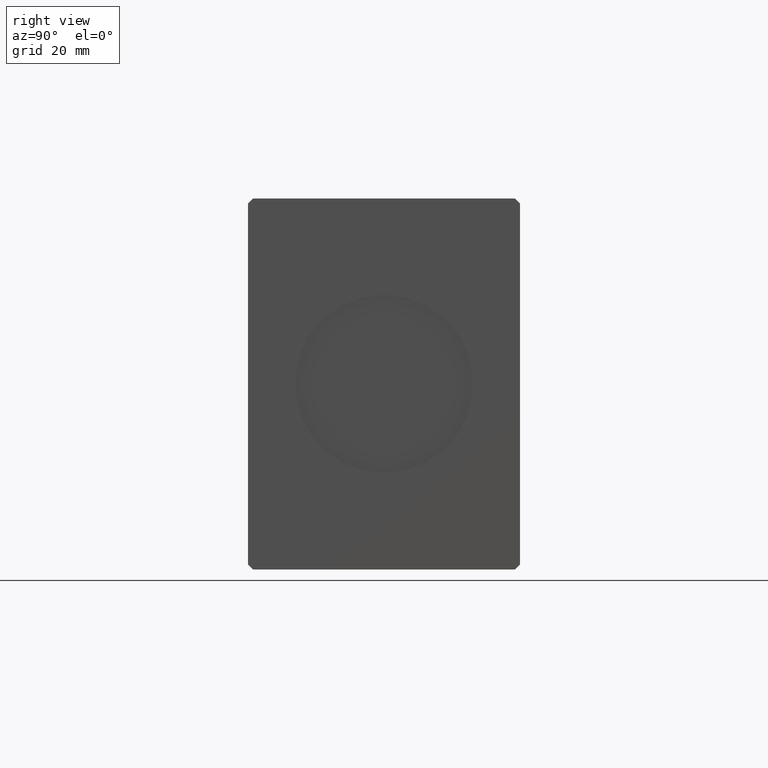
[diagram: clean part render]
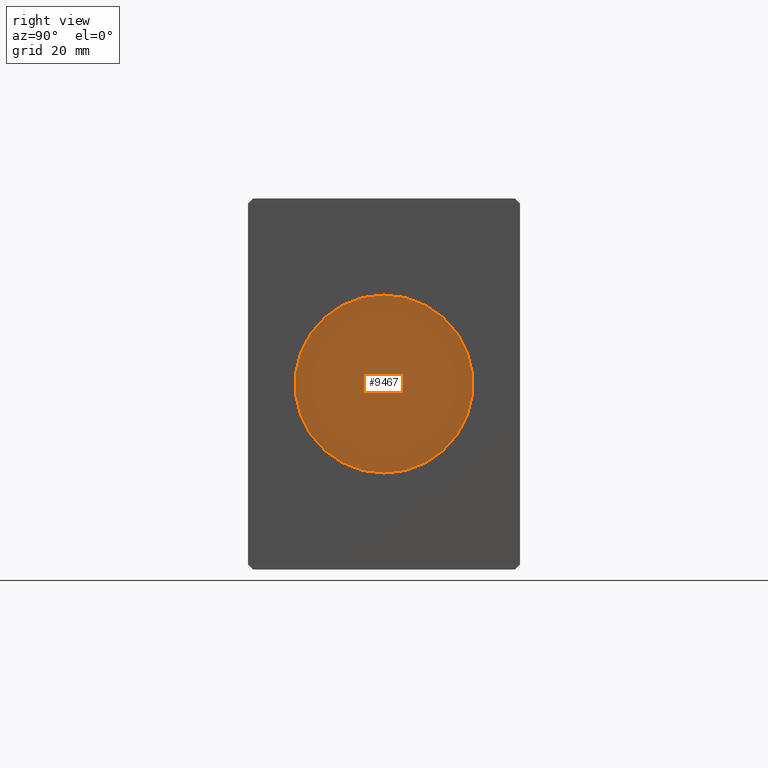
[diagram: same view with one face highlighted and labeled with its STEP entity id]
A machine part, right view. The second image highlights one B-rep face of the part: STEP entity #9467.
In plain terms, the highlighted planar face has unit normal (1, 0, 0).
Its self-contained STEP definition (entity closure, byte-faithful):
#1085 = AXIS2_PLACEMENT_3D ( 'NONE', #33202, #24228, #5903 ) ;
#4647 = VERTEX_POINT ( 'NONE', #13350 ) ;
#4913 = CIRCLE ( 'NONE', #26551, 18.00000000000000000 ) ;
#5776 = CARTESIAN_POINT ( 'NONE',  ( 114.7999999999999972, 0.000000000000000000, -18.00000000000000000 ) ) ;
#5903 = DIRECTION ( 'NONE',  ( 0.000000000000000000, 0.000000000000000000, -1.000000000000000000 ) ) ;
#6832 = DIRECTION ( 'NONE',  ( 1.000000000000000000, 0.000000000000000000, 0.000000000000000000 ) ) ;
#7033 = CARTESIAN_POINT ( 'NONE',  ( 114.7999999999999972, 0.000000000000000000, 0.000000000000000000 ) ) ;
#9467 = ADVANCED_FACE ( 'NONE', ( #34913 ), #19358, .T. ) ;
#13350 = CARTESIAN_POINT ( 'NONE',  ( 114.7999999999999972, 2.204364238465235428E-15, 18.00000000000000000 ) ) ;
#16944 = CIRCLE ( 'NONE', #1085, 18.00000000000000000 ) ;
#19172 = DIRECTION ( 'NONE',  ( 0.000000000000000000, 0.000000000000000000, -1.000000000000000000 ) ) ;
#19358 = PLANE ( 'NONE',  #37461 ) ;
#21062 = EDGE_CURVE ( 'NONE', #4647, #24492, #16944, .T. ) ;
#21927 = EDGE_CURVE ( 'NONE', #24492, #4647, #4913, .T. ) ;
#22135 = DIRECTION ( 'NONE',  ( 0.000000000000000000, 0.000000000000000000, -1.000000000000000000 ) ) ;
#24228 = DIRECTION ( 'NONE',  ( 1.000000000000000000, 0.000000000000000000, 0.000000000000000000 ) ) ;
#24492 = VERTEX_POINT ( 'NONE', #5776 ) ;
#26551 = AXIS2_PLACEMENT_3D ( 'NONE', #31885, #34085, #22135 ) ;
#29939 = ORIENTED_EDGE ( 'NONE', *, *, #21062, .T. ) ;
#30259 = ORIENTED_EDGE ( 'NONE', *, *, #21927, .T. ) ;
#31885 = CARTESIAN_POINT ( 'NONE',  ( 114.7999999999999972, 0.000000000000000000, 0.000000000000000000 ) ) ;
#33202 = CARTESIAN_POINT ( 'NONE',  ( 114.7999999999999972, 0.000000000000000000, 0.000000000000000000 ) ) ;
#34085 = DIRECTION ( 'NONE',  ( 1.000000000000000000, 0.000000000000000000, 0.000000000000000000 ) ) ;
#34321 = EDGE_LOOP ( 'NONE', ( #30259, #29939 ) ) ;
#34913 = FACE_OUTER_BOUND ( 'NONE', #34321, .T. ) ;
#37461 = AXIS2_PLACEMENT_3D ( 'NONE', #7033, #6832, #19172 ) ;